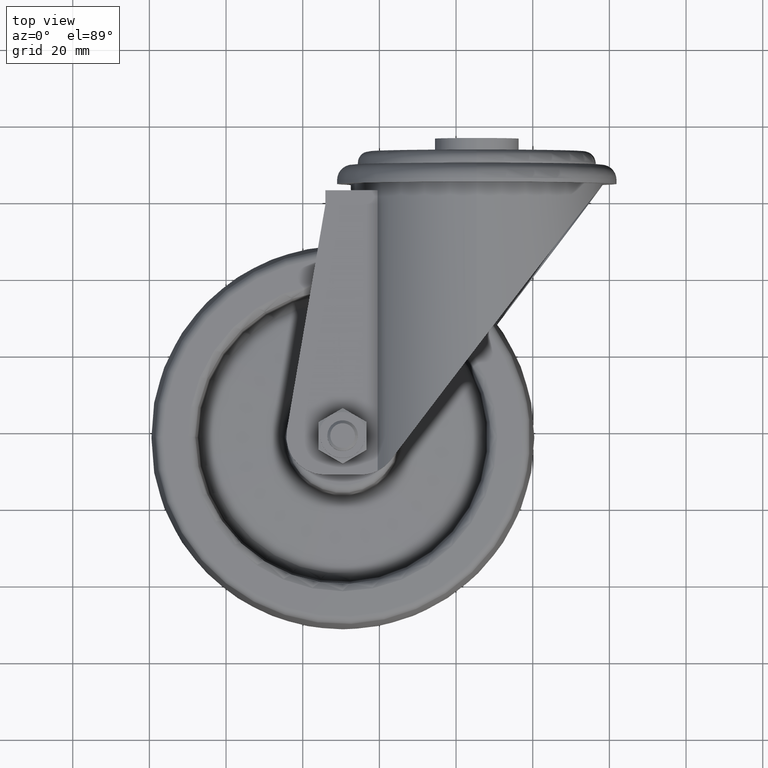
[diagram: clean part render]
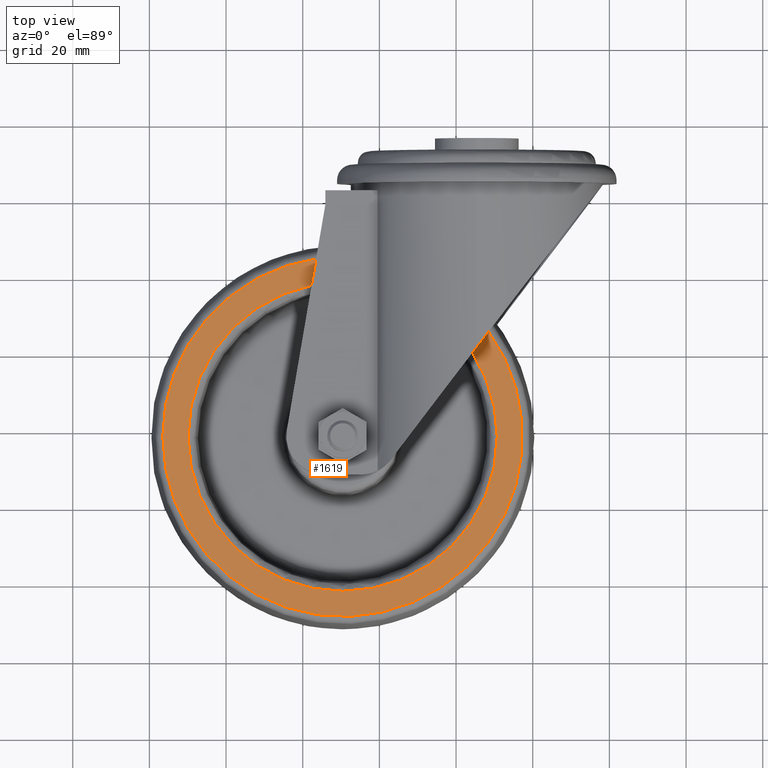
[diagram: same view with one face highlighted and labeled with its STEP entity id]
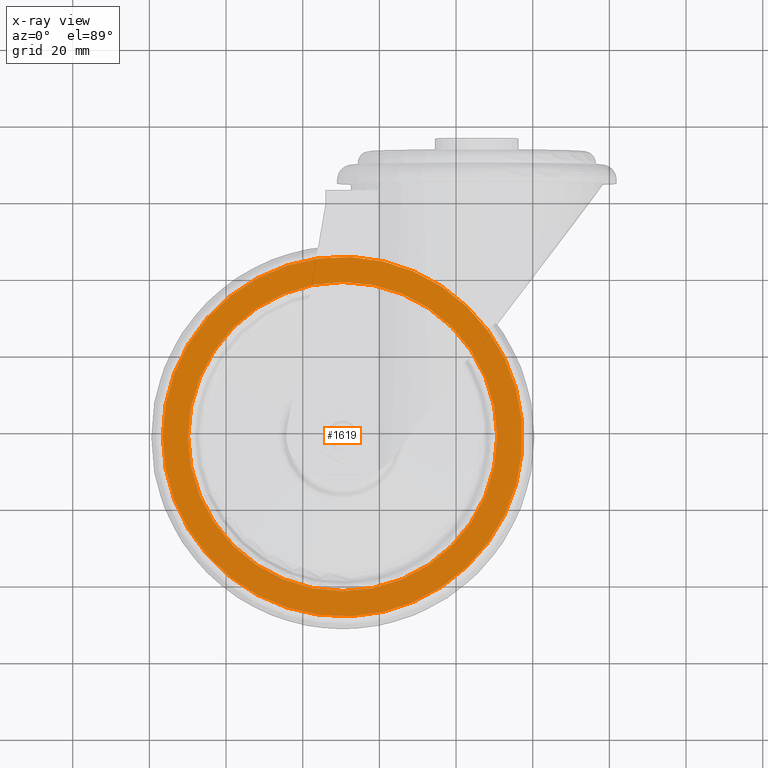
[diagram: x-ray of the same camera — body ghosted, the highlighted face saturated]
A machine part, top view. The second image highlights one B-rep face of the part: STEP entity #1619.
The next image is the same camera in x-ray: the body ghosted, the highlighted face saturated — about 0% of this face is hidden behind the body in this view.
In plain terms, the highlighted planar face has unit normal (0, 0, 1).
Its self-contained STEP definition (entity closure, byte-faithful):
#166=FACE_BOUND('',#432,.T.);
#208=PLANE('',#1928);
#308=FACE_OUTER_BOUND('',#431,.T.);
#431=EDGE_LOOP('',(#1456));
#432=EDGE_LOOP('',(#1457));
#531=CIRCLE('',#1927,40.3326623480348);
#532=CIRCLE('',#1929,46.909037180295);
#810=VERTEX_POINT('',#3016);
#811=VERTEX_POINT('',#3020);
#1027=EDGE_CURVE('',#810,#810,#531,.T.);
#1028=EDGE_CURVE('',#811,#811,#532,.T.);
#1456=ORIENTED_EDGE('',*,*,#1028,.T.);
#1457=ORIENTED_EDGE('',*,*,#1027,.F.);
#1619=ADVANCED_FACE('',(#308,#166),#208,.T.);
#1927=AXIS2_PLACEMENT_3D('',#3018,#2397,#2398);
#1928=AXIS2_PLACEMENT_3D('',#3019,#2399,#2400);
#1929=AXIS2_PLACEMENT_3D('',#3021,#2401,#2402);
#2397=DIRECTION('center_axis',(0.,0.,1.));
#2398=DIRECTION('ref_axis',(1.,0.,0.));
#2399=DIRECTION('center_axis',(0.,0.,1.));
#2400=DIRECTION('ref_axis',(1.,0.,0.));
#2401=DIRECTION('center_axis',(0.,0.,1.));
#2402=DIRECTION('ref_axis',(1.,0.,0.));
#3016=CARTESIAN_POINT('',(-40.3326623480348,-4.93932658456118E-15,15.));
#3018=CARTESIAN_POINT('Origin',(0.,0.,15.));
#3019=CARTESIAN_POINT('Origin',(40.3326623480348,0.,15.));
#3020=CARTESIAN_POINT('',(-46.909037180295,-5.74470022339325E-15,15.));
#3021=CARTESIAN_POINT('Origin',(0.,0.,15.));